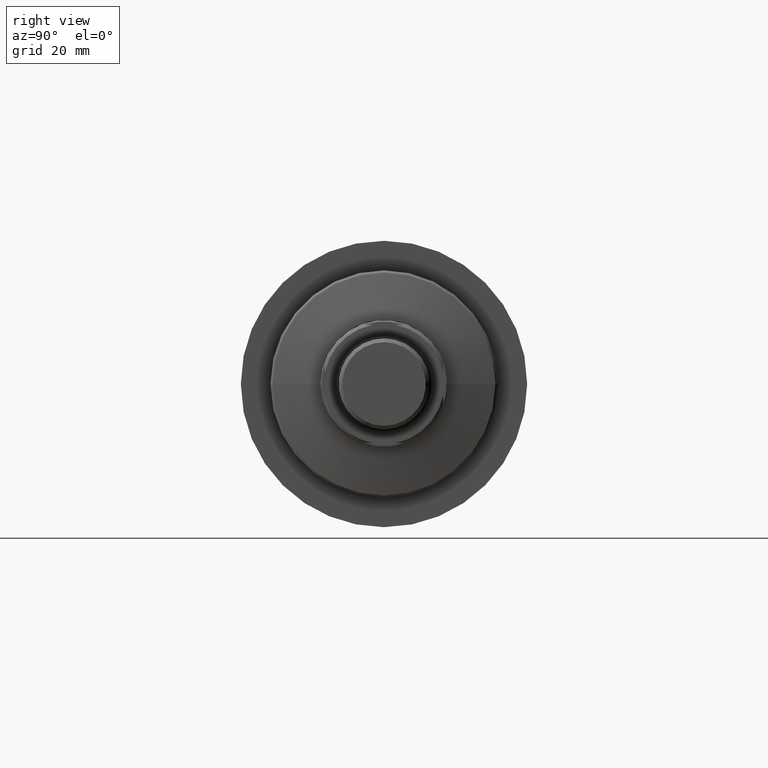
[diagram: clean part render]
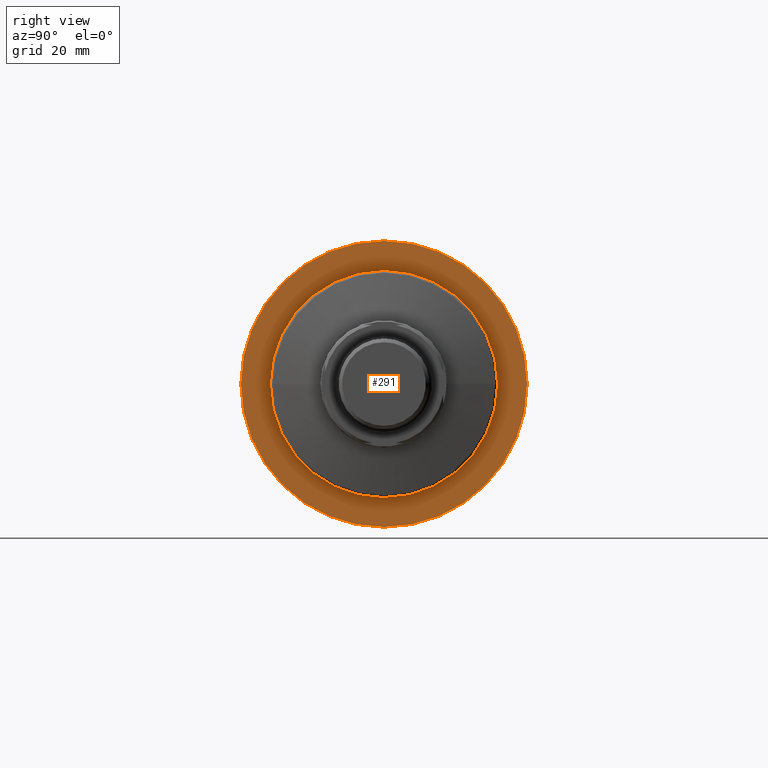
[diagram: same view with one face highlighted and labeled with its STEP entity id]
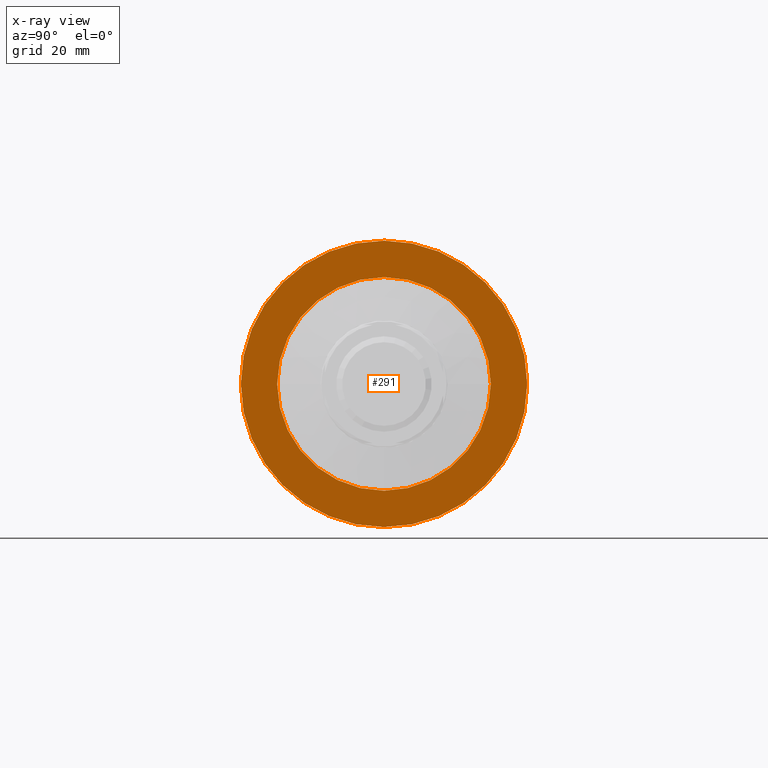
[diagram: x-ray of the same camera — body ghosted, the highlighted face saturated]
A machine part, right view. The second image highlights one B-rep face of the part: STEP entity #291.
The next image is the same camera in x-ray: the body ghosted, the highlighted face saturated — about 0% of this face is hidden behind the body in this view.
In plain terms, the highlighted planar face has unit normal (-1, -0, 0).
Its self-contained STEP definition (entity closure, byte-faithful):
#16 = CARTESIAN_POINT ( 'NONE',  ( -18.00000000000004619, 2.371756733105775503E-14, 0.000000000000000000 ) ) ;
#21 = DIRECTION ( 'NONE',  ( -1.982541115402063729E-15, 1.000000000000000000, 0.000000000000000000 ) ) ;
#184 = DIRECTION ( 'NONE',  ( 1.000000000000000000, 1.931394410353556421E-15, -0.000000000000000000 ) ) ;
#215 = AXIS2_PLACEMENT_3D ( 'NONE', #1920, #2570, #1276 ) ;
#233 = ORIENTED_EDGE ( 'NONE', *, *, #1981, .F. ) ;
#291 = ADVANCED_FACE ( 'NONE', ( #1482, #2751 ), #2763, .F. ) ;
#337 = CIRCLE ( 'NONE', #2378, 31.50000000000002132 ) ;
#399 = DIRECTION ( 'NONE',  ( -1.000000000000000000, -1.931394410353556421E-15, 0.000000000000000000 ) ) ;
#500 = EDGE_CURVE ( 'NONE', #948, #2190, #337, .T. ) ;
#516 = VERTEX_POINT ( 'NONE', #1731 ) ;
#691 = DIRECTION ( 'NONE',  ( -1.982541115402063729E-15, 1.000000000000000000, 0.000000000000000000 ) ) ;
#776 = EDGE_LOOP ( 'NONE', ( #1501, #2266 ) ) ;
#873 = AXIS2_PLACEMENT_3D ( 'NONE', #1760, #1316, #691 ) ;
#884 = CARTESIAN_POINT ( 'NONE',  ( -18.00000000000012079, 31.50000000000004263, 0.000000000000000000 ) ) ;
#948 = VERTEX_POINT ( 'NONE', #884 ) ;
#1103 = CARTESIAN_POINT ( 'NONE',  ( -17.99999999999999645, -31.50000000000000000, 3.857637417314164267E-15 ) ) ;
#1276 = DIRECTION ( 'NONE',  ( -1.919268526612579991E-15, 1.000000000000000000, 0.000000000000000000 ) ) ;
#1303 = DIRECTION ( 'NONE',  ( 1.000000000000000000, 1.931394410353556421E-15, -0.000000000000000000 ) ) ;
#1316 = DIRECTION ( 'NONE',  ( 1.000000000000000000, 1.931394410353556421E-15, -0.000000000000000000 ) ) ;
#1456 = DIRECTION ( 'NONE',  ( 1.931394410353556421E-15, -1.000000000000000000, 0.000000000000000000 ) ) ;
#1482 = FACE_BOUND ( 'NONE', #2205, .T. ) ;
#1492 = CARTESIAN_POINT ( 'NONE',  ( -18.00000000000005684, 2.371756733105773926E-14, 0.000000000000000000 ) ) ;
#1493 = EDGE_CURVE ( 'NONE', #2190, #948, #1686, .T. ) ;
#1501 = ORIENTED_EDGE ( 'NONE', *, *, #500, .T. ) ;
#1680 = DIRECTION ( 'NONE',  ( -1.919268526612579991E-15, 1.000000000000000000, 0.000000000000000000 ) ) ;
#1686 = CIRCLE ( 'NONE', #873, 31.50000000000002132 ) ;
#1701 = VERTEX_POINT ( 'NONE', #2083 ) ;
#1713 = ORIENTED_EDGE ( 'NONE', *, *, #2036, .F. ) ;
#1731 = CARTESIAN_POINT ( 'NONE',  ( -18.00000000000000355, -23.50000000000067857, 2.969768487932376647E-15 ) ) ;
#1760 = CARTESIAN_POINT ( 'NONE',  ( -18.00000000000005684, 2.371756733105773926E-14, 0.000000000000000000 ) ) ;
#1777 = CIRCLE ( 'NONE', #215, 23.50000000000070344 ) ;
#1920 = CARTESIAN_POINT ( 'NONE',  ( -18.00000000000004619, 2.371756733105775503E-14, 0.000000000000000000 ) ) ;
#1981 = EDGE_CURVE ( 'NONE', #516, #1701, #2421, .T. ) ;
#2036 = EDGE_CURVE ( 'NONE', #1701, #516, #1777, .T. ) ;
#2083 = CARTESIAN_POINT ( 'NONE',  ( -18.00000000000009237, 23.50000000000072831, 0.000000000000000000 ) ) ;
#2190 = VERTEX_POINT ( 'NONE', #1103 ) ;
#2205 = EDGE_LOOP ( 'NONE', ( #1713, #233 ) ) ;
#2266 = ORIENTED_EDGE ( 'NONE', *, *, #1493, .T. ) ;
#2378 = AXIS2_PLACEMENT_3D ( 'NONE', #1492, #1303, #21 ) ;
#2421 = CIRCLE ( 'NONE', #2774, 23.50000000000070344 ) ;
#2567 = CARTESIAN_POINT ( 'NONE',  ( -17.99999999999999289, -31.50000000000000000, 0.000000000000000000 ) ) ;
#2570 = DIRECTION ( 'NONE',  ( 1.000000000000000000, 1.931394410353556421E-15, -0.000000000000000000 ) ) ;
#2748 = AXIS2_PLACEMENT_3D ( 'NONE', #2567, #399, #1456 ) ;
#2751 = FACE_OUTER_BOUND ( 'NONE', #776, .T. ) ;
#2763 = PLANE ( 'NONE',  #2748 ) ;
#2774 = AXIS2_PLACEMENT_3D ( 'NONE', #16, #184, #1680 ) ;